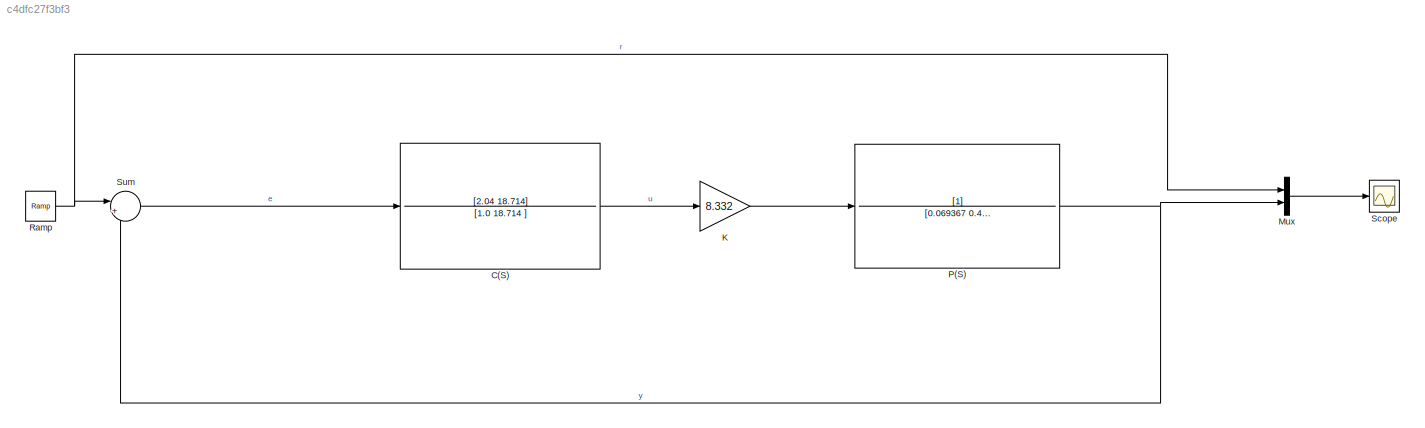
MODEL slx_c4dfc27f3bf3
KIND model
CONFIG AbsTol = auto
CONFIG EnableMultiTasking = off
CONFIG FixedStep = auto
CONFIG MaxStep = auto
CONFIG MinStep = auto
CONFIG RelTol = 1e-3
CONFIG SampleTimeConstraint = Unconstrained
CONFIG SolverName = VariableStepAuto
CONFIG StartTime = 0.0
CONFIG StopTime = 10.0
BLOCK [TransferFcn]  P(S)
  Denominator = [0.069367 0.4166 0]
BLOCK [TransferFcn] C(S)
  Denominator = [1.0 18.714 ]
  Numerator = [2.04 18.714]
BLOCK [Gain] K
  Gain = 8.332
BLOCK [Mux] Mux
  DisplayOption = bar
  Inputs = 2
BLOCK [Reference] Ramp  REF=simulink/Sources/Ramp
  SourceBlock = simulink/Sources/Ramp
  SourceType = Ramp
BLOCK [Scope] Scope
  Floating = off
  NumInputPorts = 1
  ScopeSpecificationString = Simulink.scopes.TimeScopeBlockCfg('CurrentConfiguration', extmgr.ConfigurationSet(extmgr.Configuration('Core','General UI',true),extmgr.Configuration('Core','Source UI',true),extmgr.Configuration('Sources','WiredSimulink',true),extmgr.Configuration('Visuals','Time Domain',true,'SerializedDisplays',{struct('MinYLimReal','0','MaxYLimReal','10','YLabelReal','Angle  (rad)','MinYLimMag','0.00000','MaxY...<+1556ch>
BLOCK [Sum] Sum
  Inputs = |+-
NET  P(S):1 -> Mux:2, Sum:2
LINE C(S):1 -> K:1
LINE K:1 ->  P(S):1
LINE Mux:1 -> Scope:1
NET Ramp:1 -> Mux:1, Sum:1
LINE Sum:1 -> C(S):1
note: NET lines group one-source signal fan-out (src -> all destinations, sorted); 1:1 wires keep LINE
